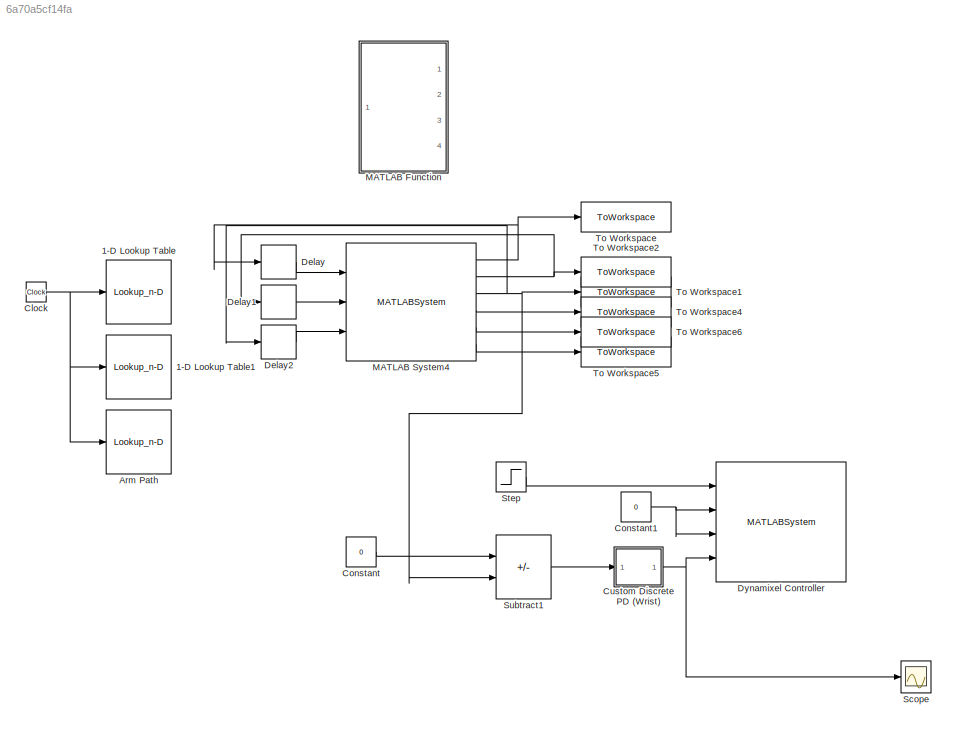
MODEL slx_6a70a5cf14fa
KIND model
CONFIG AbsTol = auto
CONFIG EnableMultiTasking = off
CONFIG FixedStep = 0.05
CONFIG MaxStep = auto
CONFIG MinStep = auto
CONFIG RelTol = 1e-3
CONFIG SampleTimeConstraint = Unconstrained
CONFIG Solver = ode4
CONFIG SolverName = ode4
CONFIG StartTime = 0.0
CONFIG StopTime = 2
BLOCK [Lookup_n-D] 1-D Lookup Table
  BreakpointsForDimension1 = [0\n0.300000000000000\n0.600000000000000\n0.900000000000000\n1.20000000000000\n1.50000000000000\n1.80000000000000\n2.10000000000000\n2.40000000000000\n2.70000000000000\n3\n3.30000000000000\n3.60000000000000\n3.90000000000000\n4.20000000000000\n4.50000000000000\n4.80000000000000\n5.10000000000000\n5.40000000000000\n5.70000000000000\n6\n6.30000000000000\n6.60000000000000\n6.90000000000000\n7.20000000000000\n7.50000000000000...<+1163ch>  <repeated x3 — deduplicated; at blocks: 1-D Lookup Table, 1-D Lookup Table1, Arm Path>
  Commented = on
  InternalRulePriority = Speed
  NumberOfTableDimensions = 1
  Ports = [1, 1]
  RndMeth = Simplest
  Table = [1.57000000000000\n1.54816700100684\n1.49097838714515\n1.40738374526561\n1.30517963261499\n1.19037595061406\n1.06817443571262\n0.943755752477061\n0.821348547944454\n0.703746844506339\n0.593625926874354\n0.493661079760138\n0.406301951764504\n0.332150464577563\n0.270904238844892\n0.222254718367453\n0.185893346946205\n0.161510391400890\n0.148507079640713\n0.145619174532266\n0.151489118608687\n0.164759354403110\n0.18407232...<+1425ch>
BLOCK [Lookup_n-D] 1-D Lookup Table1
  Commented = on
  InternalRulePriority = Speed
  NumberOfTableDimensions = 1
  Ports = [1, 1]
  RndMeth = Simplest
  Table = [1.57000000000000\n1.57050205302399\n1.57012603662556\n1.56661162770156\n1.55794488562962\n1.54285929753597\n1.52042643744410\n1.48973080887809\n1.45048425411524\n1.40334397159352\n1.34904540279350\n1.28832398919572\n1.22195859634965\n1.15108368811919\n1.07700776270488\n1.00104050705195\n0.924491608105622\n0.848670299127955\n0.774774399465782\n0.703745216061739\n0.636488084287358\n0.573908339514172\n0.516911317113714\n0...<+1419ch>
BLOCK [Lookup_n-D] Arm Path
  Commented = on
  InternalRulePriority = Speed
  NumberOfTableDimensions = 1
  Ports = [1, 1]
  RndMeth = Simplest
  Table = [4.24105195407198e-14\n0.00792484586540242\n0.0289766808051712\n0.0591226460349239\n0.0945266677508536\n0.132723049258546\n0.171865961865416\n0.210118613330810\n0.245977670299252\n0.278442298917847\n0.306553255045181\n0.329351294539841\n0.345978769405532\n0.356409999236062\n0.361026479142565\n0.360212485455902\n0.354352294506931\n0.343830913350855\n0.329212797758318\n0.311475554957133\n0.291654729751521\n0.27078586694...<+1414ch>
BLOCK [Clock] Clock
BLOCK [Constant] Constant
  Value = 0
BLOCK [Constant] Constant1
  Value = 0
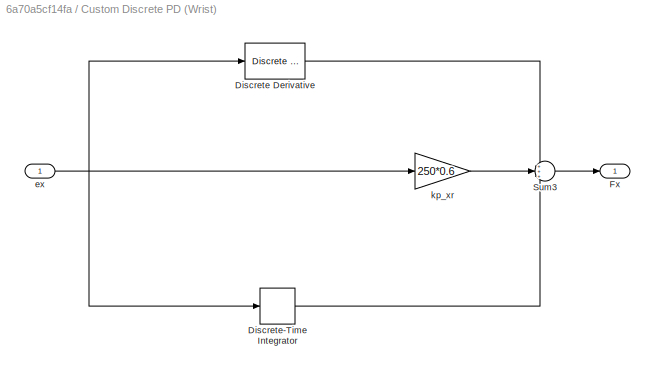
BLOCK [SubSystem] Custom Discrete PD (Wrist)
  Ports = [1, 1]
  RequestExecContextInheritance = off
BLOCK [Reference] Custom Discrete PD (Wrist)/Discrete Derivative  REF=simulink/Discrete/Discrete Derivative
  Ports = [1, 1]
  SourceBlock = simulink/Discrete/Discrete Derivative
  SourceProductBaseCode = SL
  SourceType = Discrete Derivative
BLOCK [DiscreteIntegrator] Custom Discrete PD (Wrist)/Discrete-Time Integrator
  ICPrevOutput = DiscIntNeverNeededParam
  ICPrevScaledInput = DiscIntNeverNeededParam
  InitialConditionSetting = Auto
  Ports = [1, 1]
  SampleTime = -1
  gainval = 100
BLOCK [Outport] Custom Discrete PD (Wrist)/Fx
  VectorParamsAs1DForOutWhenUnconnected = off
BLOCK [Sum] Custom Discrete PD (Wrist)/Sum3
  Inputs = +++
  NameLocation = top
  Ports = [3, 1]
BLOCK [Inport] Custom Discrete PD (Wrist)/ex
BLOCK [Gain] Custom Discrete PD (Wrist)/kp_xr
  Gain = 250*0.6
BLOCK [Delay] Delay
  DelayLength = 1
  InputPortMap = u0
  Ports = [1, 1]
BLOCK [Delay] Delay1
  DelayLength = 1
  InputPortMap = u0
  Ports = [1, 1]
BLOCK [Delay] Delay2
  DelayLength = 1
  InputPortMap = u0
  Ports = [1, 1]
BLOCK [MATLABSystem] Dynamixel Controller
  ACCELERATION_TIME = 0
  CURRENT_LIMIT = 850
  MAX_POSITION = 3072
  MIN_POSITION = 1024
  MOVE_TIME = 0
  MaskDisplay = disp('Dynamixel_Controller');\nport_label('input',1,'Control_Mode');\nport_label('input',2,'Joint1_Command');\nport_label('input',3,'Joint2_Command');\nport_label('input',4,'Joint3_Command');
  MaskType = Dynamixel_Controller
  POSITION_D_GAIN = 200
  POSITION_I_GAIN = 0
  POSITION_P_GAIN = 400
  Ports = [4]
  SPEED_I_GAIN = 1920
  SPEED_P_GAIN = 100
  SampleTime = 0.05
  System = Dynamixel_Controller
  VELOCITY_LIMIT = 1023
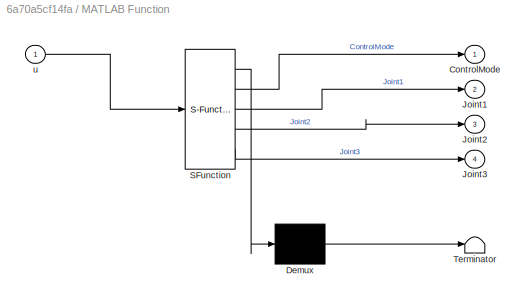
BLOCK [SubSystem] MATLAB Function
  Commented = on
  ErrorFcn = Stateflow.Translate.translate
  PermitHierarchicalResolution = ExplicitOnly
  Ports = [1, 4]
  RequestExecContextInheritance = off
  SFBlockType = MATLAB Function
  TreatAsAtomicUnit = on
BLOCK [Demux] MATLAB Function/ Demux 
  Outputs = 1
  Ports = [1, 1]
BLOCK [S-Function] MATLAB Function/ SFunction 
  EnableBusSupport = on
  FunctionName = sf_sfun
  PortCounts = [1 5]
  Ports = [1, 5]
  SFcnIsStateOwnerBlock = off
  SFunctionDeploymentMode = off
  Tag = Stateflow S-Function 2
BLOCK [Terminator] MATLAB Function/ Terminator 
BLOCK [Outport] MATLAB Function/ControlMode
BLOCK [Outport] MATLAB Function/Joint1
  Port = 2
BLOCK [Outport] MATLAB Function/Joint2
  Port = 3
BLOCK [Outport] MATLAB Function/Joint3
  Port = 4
BLOCK [Inport] MATLAB Function/u
BLOCK [MATLABSystem] MATLAB System4
  MaskDisplay = disp('ReadArm_Position_Rates');\nport_label('input',1,'u1');\nport_label('input',2,'u2');\nport_label('input',3,'u3');\nport_label('output',1,'theta1');\nport_label('output',2,'theta2');\nport_label('output',3,'theta3');\nport_label('output',4,'omega1');\nport_label('output',5,'omega2');\nport_label('output',6,'omega3');
  MaskType = ReadArm_Position_Rates
  Ports = [3, 6]
  SampleTime = 0.05
  System = ReadArm_Position_Rates
BLOCK [Scope] Scope
  Floating = off
  NumInputPorts = 1
  Ports = [1]
  ScopeSpecificationString = Simulink.scopes.TimeScopeBlockCfg('CurrentConfiguration', extmgr.ConfigurationSet(extmgr.Configuration('Core','General UI',true),extmgr.Configuration('Core','Source UI',true),extmgr.Configuration('Sources','WiredSimulink',true),extmgr.Configuration('Visuals','Time Domain',true,'SerializedDisplays',{struct('MinYLimReal','-1.00000','MaxYLimReal','1.00000','YLabelReal','','MinYLimMag','0.00000','MaxY...<+1375ch>
BLOCK [Step] Step
  After = 2
  SampleTime = 0
  Time = 0.3
BLOCK [Sum] Subtract1
  IconShape = rectangular
  Inputs = +-
  Ports = [2, 1]
BLOCK [ToWorkspace] To Workspace
  FixptAsFi = on
  MaxDataPoints = inf
  Ports = [1]
  SampleTime = -1
  Save2DSignal = 2-D array (concatenate along first dimension)
  VariableName = theta1
BLOCK [ToWorkspace] To Workspace1
  FixptAsFi = on
  MaxDataPoints = inf
  Ports = [1]
  SampleTime = -1
  Save2DSignal = 2-D array (concatenate along first dimension)
  VariableName = theta3
BLOCK [ToWorkspace] To Workspace2
  FixptAsFi = on
  MaxDataPoints = inf
  Ports = [1]
  SampleTime = -1
  Save2DSignal = 2-D array (concatenate along first dimension)
  VariableName = theta2
BLOCK [ToWorkspace] To Workspace4
  FixptAsFi = on
  MaxDataPoints = inf
  Ports = [1]
  SampleTime = -1
  Save2DSignal = 2-D array (concatenate along first dimension)
  VariableName = omega1
BLOCK [ToWorkspace] To Workspace5
  FixptAsFi = on
  MaxDataPoints = inf
  Ports = [1]
  SampleTime = -1
  Save2DSignal = 2-D array (concatenate along first dimension)
  VariableName = omega3
BLOCK [ToWorkspace] To Workspace6
  FixptAsFi = on
  MaxDataPoints = inf
  Ports = [1]
  SampleTime = -1
  Save2DSignal = 2-D array (concatenate along first dimension)
  VariableName = omega2
NET Clock:1 -> 1-D Lookup Table1:1, 1-D Lookup Table:1, Arm Path:1
NET Constant1:1 -> Dynamixel Controller:2, Dynamixel Controller:3
LINE Constant:1 -> Subtract1:1
LINE Custom Discrete PD (Wrist)/Discrete Derivative:1 -> Custom Discrete PD (Wrist)/Sum3:1
LINE Custom Discrete PD (Wrist)/Discrete-Time Integrator:1 -> Custom Discrete PD (Wrist)/Sum3:3
LINE Custom Discrete PD (Wrist)/Sum3:1 -> Custom Discrete PD (Wrist)/Fx:1
NET Custom Discrete PD (Wrist)/ex:1 -> Custom Discrete PD (Wrist)/Discrete Derivative:1, Custom Discrete PD (Wrist)/Discrete-Time Integrator:1, Custom Discrete PD (Wrist)/kp_xr:1
LINE Custom Discrete PD (Wrist)/kp_xr:1 -> Custom Discrete PD (Wrist)/Sum3:2
NET Custom Discrete PD (Wrist):1 -> Dynamixel Controller:4, Scope:1
LINE Delay1:1 -> MATLAB System4:2
LINE Delay2:1 -> MATLAB System4:3
LINE Delay:1 -> MATLAB System4:1
NET MATLAB System4:1 -> Delay:1, To Workspace:1
NET MATLAB System4:2 -> Delay1:1, To Workspace2:1
NET MATLAB System4:3 -> Delay2:1, Subtract1:2, To Workspace1:1
LINE MATLAB System4:4 -> To Workspace4:1
LINE MATLAB System4:5 -> To Workspace6:1
LINE MATLAB System4:6 -> To Workspace5:1
LINE Step:1 -> Dynamixel Controller:1
LINE Subtract1:1 -> Custom Discrete PD (Wrist):1
note: NET lines group one-source signal fan-out (src -> all destinations, sorted); 1:1 wires keep LINE
CHART MATLAB Function states=1 transitions=1
  STATE_LABEL 'eML_blk_kernel()'
  STATE_LABEL 'SCRIPT:\nfunction [ControlMode,Joint1,Joint2,Joint3] = fcn(u)\n    if u < 0.3\n        ControlMode = 0;\n        Joint1 = 0;\n        Joint2 = 0;\n        Joint3 = 0;\n    elseif u>=0.3 && u < 2.5\n        ControlMode = 1;\n        Joint1 = pi/2;\n        Joint2 = pi/2;\n        Joint3 = 0;\n    elseif ((u > 2.5) && (u < 2.7))\n        ControlMode = 0; \n        Joint1 = 0;\n        Joint2 = 0;\n        Joint3 = ...<+543ch>'
CHART  states=0 transitions=0
